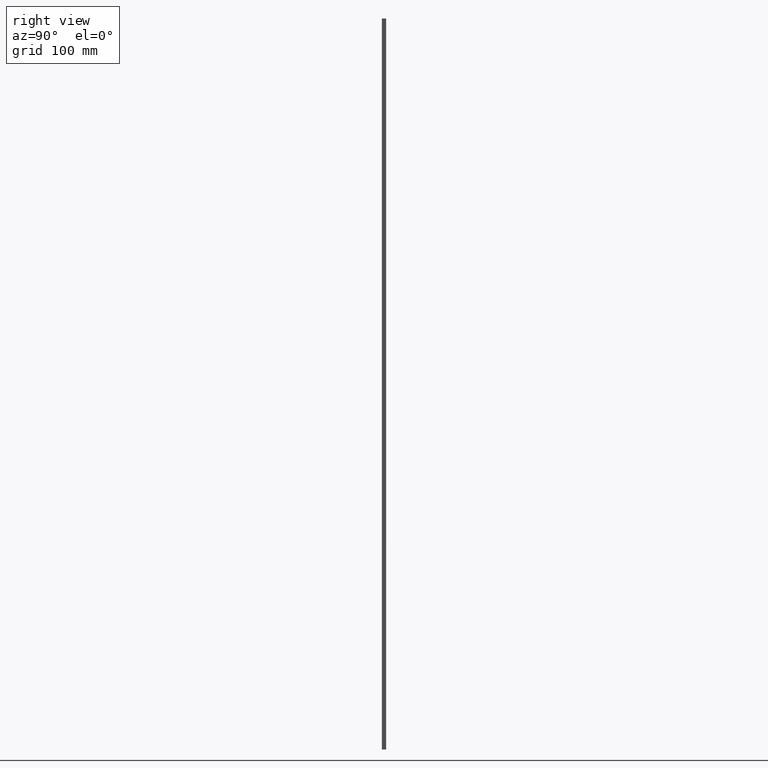
[diagram: clean part render]
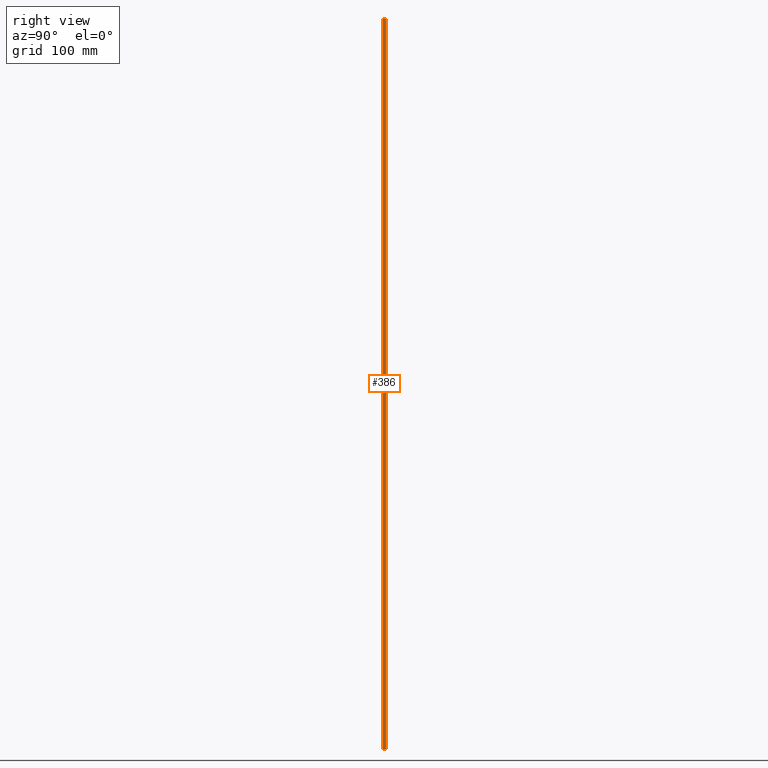
[diagram: same view with one face highlighted and labeled with its STEP entity id]
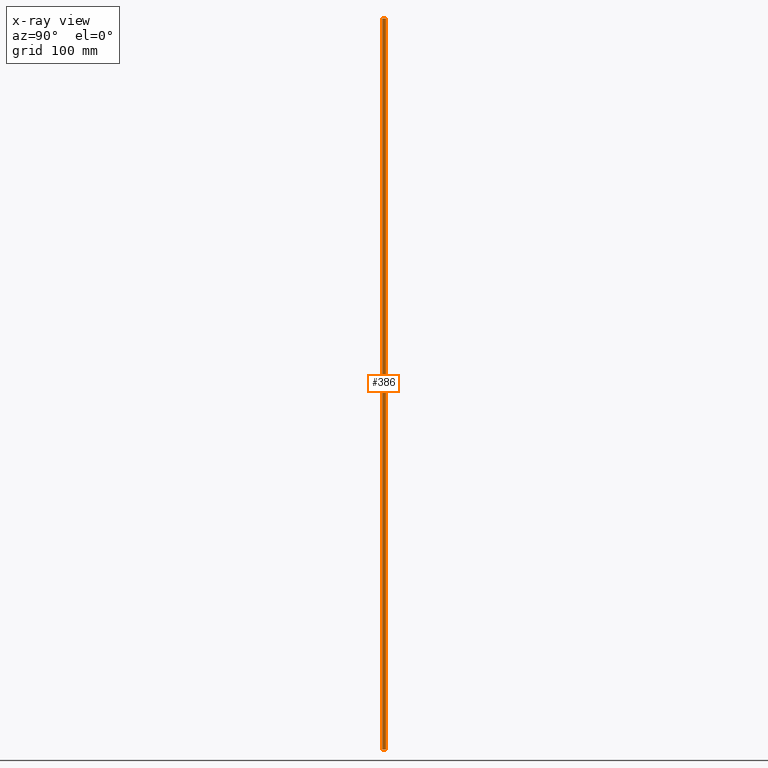
[diagram: x-ray of the same camera — body ghosted, the highlighted face saturated]
A machine part, right view. The second image highlights one B-rep face of the part: STEP entity #386.
The next image is the same camera in x-ray: the body ghosted, the highlighted face saturated — about 0% of this face is hidden behind the body in this view.
In plain terms, the highlighted planar face has unit normal (-1, 0, 0).
Its self-contained STEP definition (entity closure, byte-faithful):
#87 = EDGE_LOOP ( 'NONE', ( #282, #254, #262, #277 ) ) ;
#247 = CARTESIAN_POINT ( 'NONE',  ( 89.13745546312873100, 0.5000000000000000000, 1000.000000000000000 ) ) ;
#250 = VERTEX_POINT ( 'NONE', #247 ) ;
#254 = ORIENTED_EDGE ( 'NONE', *, *, #361, .T. ) ;
#258 = VERTEX_POINT ( 'NONE', #310 ) ;
#262 = ORIENTED_EDGE ( 'NONE', *, *, #372, .T. ) ;
#263 = VERTEX_POINT ( 'NONE', #305 ) ;
#277 = ORIENTED_EDGE ( 'NONE', *, *, #366, .T. ) ;
#282 = ORIENTED_EDGE ( 'NONE', *, *, #379, .F. ) ;
#288 = VERTEX_POINT ( 'NONE', #313 ) ;
#305 = CARTESIAN_POINT ( 'NONE',  ( 89.13745546312873100, 5.453748472184594600, 1000.000000000000000 ) ) ;
#310 = CARTESIAN_POINT ( 'NONE',  ( 89.13745546312873100, 5.453748472184594600, 0.0000000000000000000 ) ) ;
#313 = CARTESIAN_POINT ( 'NONE',  ( 89.13745546312873100, 0.5000000000000000000, 0.0000000000000000000 ) ) ;
#361 = EDGE_CURVE ( 'NONE', #250, #288, #540, .T. ) ;
#366 = EDGE_CURVE ( 'NONE', #258, #263, #553, .T. ) ;
#372 = EDGE_CURVE ( 'NONE', #288, #258, #534, .T. ) ;
#379 = EDGE_CURVE ( 'NONE', #250, #263, #476, .T. ) ;
#386 = ADVANCED_FACE ( 'NONE', ( #527 ), #523, .F. ) ;
#456 = CARTESIAN_POINT ( 'NONE',  ( 89.13745546312873100, 0.0000000000000000000, 1000.000000000000000 ) ) ;
#463 = DIRECTION ( 'NONE',  ( 0.0000000000000000000, 1.000000000000000000, 0.0000000000000000000 ) ) ;
#469 = CARTESIAN_POINT ( 'NONE',  ( 89.13745546312873100, 0.0000000000000000000, 0.0000000000000000000 ) ) ;
#476 = LINE ( 'NONE', #456, #663 ) ;
#480 = DIRECTION ( 'NONE',  ( 0.0000000000000000000, 1.000000000000000000, 0.0000000000000000000 ) ) ;
#503 = CARTESIAN_POINT ( 'NONE',  ( 89.13745546312873100, 0.0000000000000000000, 1000.000000000000000 ) ) ;
#523 = PLANE ( 'NONE',  #655 ) ;
#526 = DIRECTION ( 'NONE',  ( 0.0000000000000000000, 0.0000000000000000000, 1.000000000000000000 ) ) ;
#527 = FACE_OUTER_BOUND ( 'NONE', #87, .T. ) ;
#528 = DIRECTION ( 'NONE',  ( -1.000000000000000000, 0.0000000000000000000, 0.0000000000000000000 ) ) ;
#532 = CARTESIAN_POINT ( 'NONE',  ( 89.13745546312873100, 5.453748472184594600, 1000.000000000000000 ) ) ;
#533 = DIRECTION ( 'NONE',  ( -0.0000000000000000000, -0.0000000000000000000, 1.000000000000000000 ) ) ;
#534 = LINE ( 'NONE', #469, #652 ) ;
#540 = LINE ( 'NONE', #554, #641 ) ;
#553 = LINE ( 'NONE', #532, #645 ) ;
#554 = CARTESIAN_POINT ( 'NONE',  ( 89.13745546312873100, 0.5000000000000000000, 1000.000000000000000 ) ) ;
#555 = DIRECTION ( 'NONE',  ( 0.0000000000000000000, 0.0000000000000000000, -1.000000000000000000 ) ) ;
#641 = VECTOR ( 'NONE', #555, 1000.000000000000000 ) ;
#645 = VECTOR ( 'NONE', #533, 1000.000000000000000 ) ;
#652 = VECTOR ( 'NONE', #480, 1000.000000000000000 ) ;
#655 = AXIS2_PLACEMENT_3D ( 'NONE', #503, #528, #526 ) ;
#663 = VECTOR ( 'NONE', #463, 1000.000000000000000 ) ;